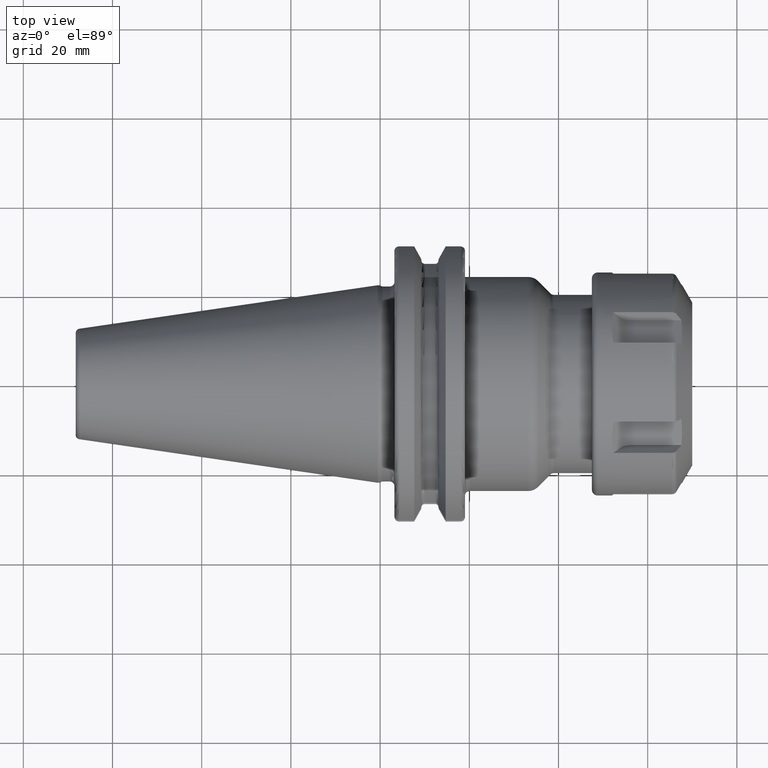
[diagram: clean part render]
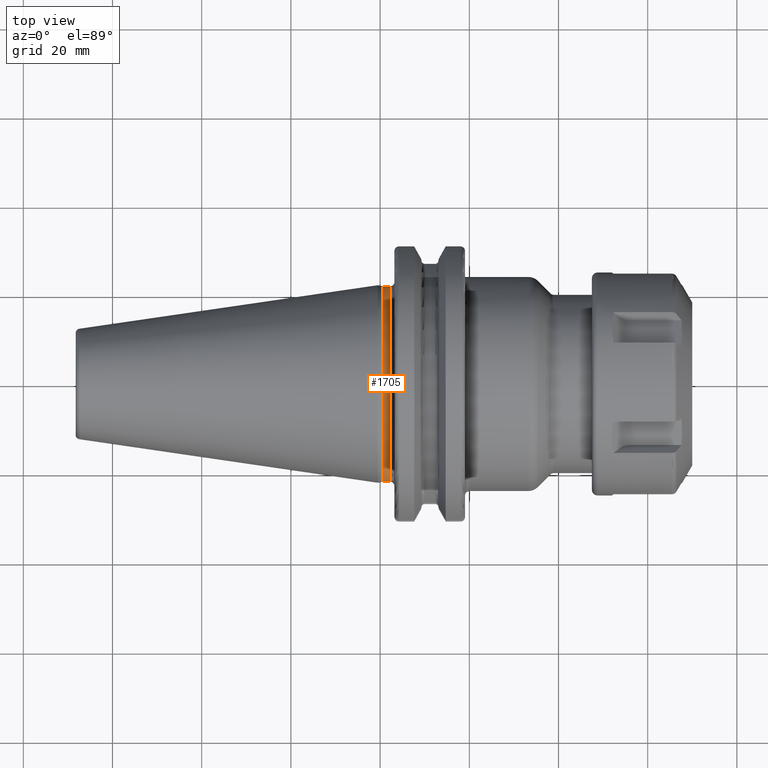
[diagram: same view with one face highlighted and labeled with its STEP entity id]
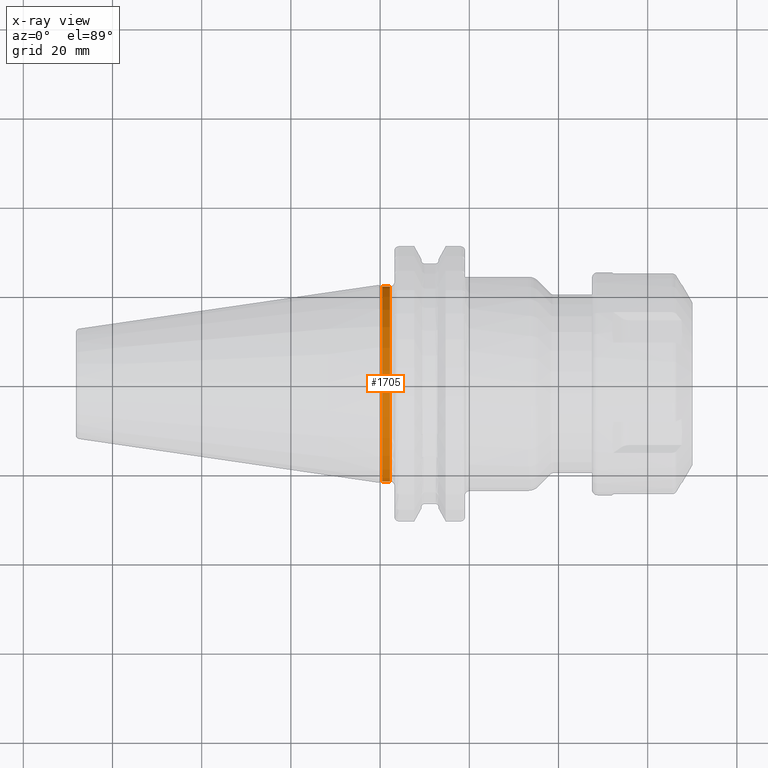
[diagram: x-ray of the same camera — body ghosted, the highlighted face saturated]
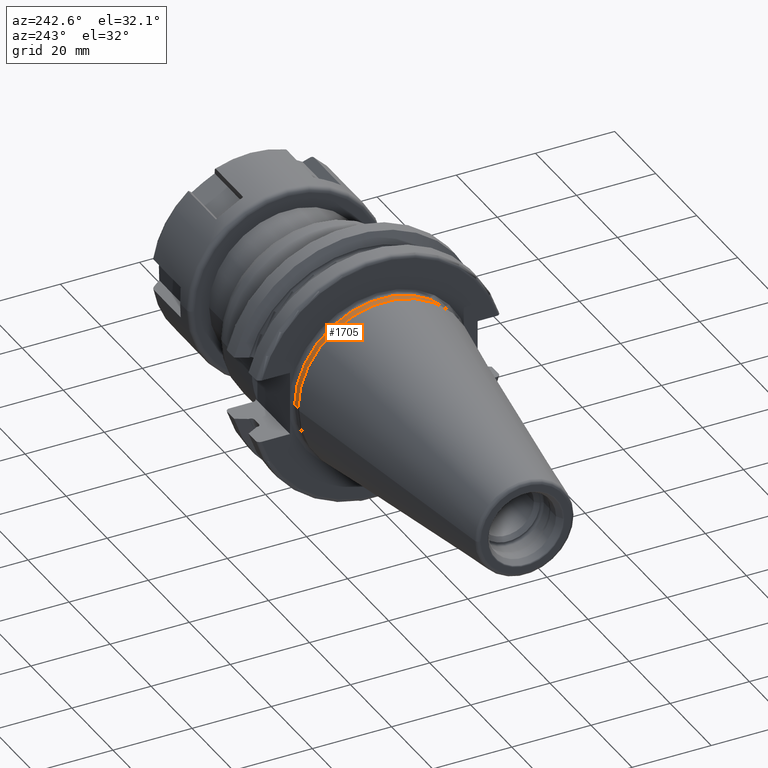
[diagram: same view with one face highlighted and labeled with its STEP entity id]
A machine part, top view. The second image highlights one B-rep face of the part: STEP entity #1705.
The next image is the same camera in x-ray: the body ghosted, the highlighted face saturated — about 0% of this face is hidden behind the body in this view.
A second angle (auxiliary view) of the same face is appended — the face is thin or edge-on in the first view.
In plain terms, the highlighted cylindrical surface (partial cylindrical patch) has radius 21.875 mm, axis along (1, 0, 0).
Its self-contained STEP definition (entity closure, byte-faithful):
#73=CARTESIAN_POINT('',(5.5E-1,0.E0,0.E0));
#74=DIRECTION('',(1.E0,0.E0,0.E0));
#75=DIRECTION('',(0.E0,1.E0,0.E0));
#76=AXIS2_PLACEMENT_3D('',#73,#74,#75);
#78=CARTESIAN_POINT('',(2.2E0,0.E0,0.E0));
#79=DIRECTION('',(1.E0,0.E0,0.E0));
#80=DIRECTION('',(0.E0,1.E0,0.E0));
#81=AXIS2_PLACEMENT_3D('',#78,#79,#80);
#83=DIRECTION('',(-1.E0,0.E0,0.E0));
#84=VECTOR('',#83,1.65E0);
#85=CARTESIAN_POINT('',(2.2E0,2.1875E1,0.E0));
#86=LINE('',#85,#84);
#87=DIRECTION('',(-1.E0,0.E0,0.E0));
#88=VECTOR('',#87,1.65E0);
#89=CARTESIAN_POINT('',(2.2E0,-2.1875E1,0.E0));
#90=LINE('',#89,#88);
#1319=CARTESIAN_POINT('',(2.2E0,2.1875E1,0.E0));
#1320=CARTESIAN_POINT('',(5.5E-1,2.1875E1,0.E0));
#1321=VERTEX_POINT('',#1319);
#1322=VERTEX_POINT('',#1320);
#1324=CARTESIAN_POINT('',(2.2E0,-2.1875E1,0.E0));
#1326=VERTEX_POINT('',#1324);
#1327=CARTESIAN_POINT('',(5.5E-1,-2.1875E1,0.E0));
#1328=VERTEX_POINT('',#1327);
#1691=CARTESIAN_POINT('',(-7.2615E1,0.E0,0.E0));
#1692=DIRECTION('',(1.E0,0.E0,0.E0));
#1693=DIRECTION('',(0.E0,-1.E0,0.E0));
#1694=AXIS2_PLACEMENT_3D('',#1691,#1692,#1693);
#1695=CYLINDRICAL_SURFACE('',#1694,2.1875E1);
#1697=ORIENTED_EDGE('',*,*,#1696,.F.);
#1699=ORIENTED_EDGE('',*,*,#1698,.T.);
#1701=ORIENTED_EDGE('',*,*,#1700,.T.);
#1702=ORIENTED_EDGE('',*,*,#1684,.F.);
#1703=EDGE_LOOP('',(#1697,#1699,#1701,#1702));
#1704=FACE_OUTER_BOUND('',#1703,.F.);
#1705=ADVANCED_FACE('',(#1704),#1695,.T.);
#77=CIRCLE('',#76,2.1875E1);
#82=CIRCLE('',#81,2.1875E1);
#1684=EDGE_CURVE('',#1322,#1328,#77,.T.);
#1696=EDGE_CURVE('',#1321,#1322,#86,.T.);
#1698=EDGE_CURVE('',#1321,#1326,#82,.T.);
#1700=EDGE_CURVE('',#1326,#1328,#90,.T.);